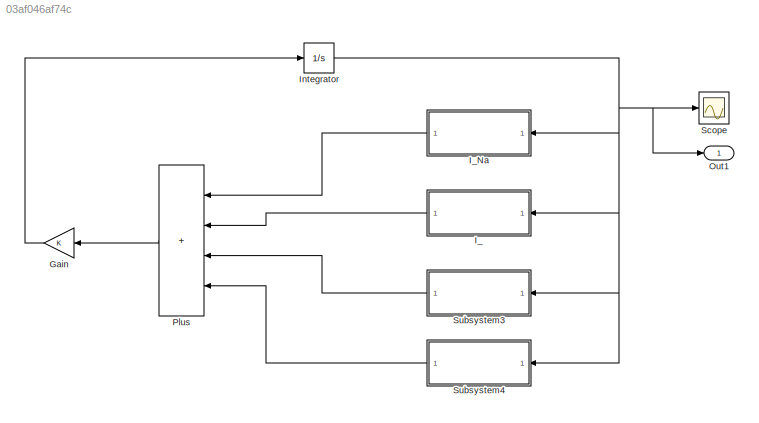
MODEL slx_03af046af74c
KIND model
CONFIG AbsTol = auto
CONFIG EnableMultiTasking = off
CONFIG FixedStep = 30e-6
CONFIG MaxStep = auto
CONFIG MinStep = auto
CONFIG RelTol = 1e-3
CONFIG SampleTimeConstraint = Unconstrained
CONFIG SolverName = FixedStepAuto
CONFIG StartTime = 0.0
CONFIG StopTime = 30e3
BLOCK [Gain] Gain
  NameLocation = top
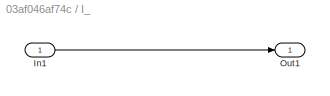
BLOCK [SubSystem] I_
  NameLocation = top
  Ports = [1, 1]
  RequestExecContextInheritance = off
BLOCK [Inport] I_/In1
BLOCK [Outport] I_/Out1
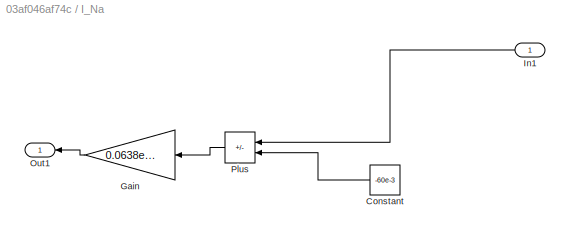
BLOCK [SubSystem] I_Na
  NameLocation = top
  Ports = [1, 1]
  RequestExecContextInheritance = off
BLOCK [Constant] I_Na/Constant
  NameLocation = top
  Value = -60e-3
BLOCK [Gain] I_Na/Gain
  Gain = 0.0638e-3
  NameLocation = top
BLOCK [Inport] I_Na/In1
  NameLocation = top
BLOCK [Outport] I_Na/Out1
  NameLocation = top
BLOCK [Sum] I_Na/Plus
  IconShape = rectangular
  Inputs = +-
  NameLocation = top
  Ports = [2, 1]
BLOCK [Integrator] Integrator
  InitialCondition = -60e3
  Ports = [1, 1]
BLOCK [Outport] Out1
BLOCK [Sum] Plus
  IconShape = rectangular
  Inputs = ++++
  NameLocation = top
  Ports = [4, 1]
BLOCK [Scope] Scope
  Floating = off
  NumInputPorts = 1
  Ports = [1]
  ScopeSpecificationString = Simulink.scopes.TimeScopeBlockCfg('CurrentConfiguration', extmgr.ConfigurationSet(extmgr.Configuration('Core','General UI',true),extmgr.Configuration('Core','Source UI',true),extmgr.Configuration('Sources','WiredSimulink',true),extmgr.Configuration('Visuals','Time Domain',true),extmgr.Configuration('Tools','Plot Navigation',true),extmgr.Configuration('Tools','Measurements',true)),'Version','2021a'...<+1ch>
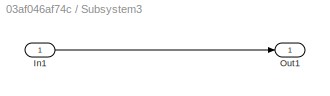
BLOCK [SubSystem] Subsystem3
  NameLocation = top
  Ports = [1, 1]
  RequestExecContextInheritance = off
BLOCK [Inport] Subsystem3/In1
BLOCK [Outport] Subsystem3/Out1
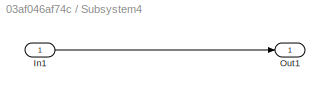
BLOCK [SubSystem] Subsystem4
  NameLocation = top
  Ports = [1, 1]
  RequestExecContextInheritance = off
BLOCK [Inport] Subsystem4/In1
BLOCK [Outport] Subsystem4/Out1
LINE Gain:1 -> Integrator:1
LINE I_/In1:1 -> I_/Out1:1
LINE I_:1 -> Plus:2
LINE I_Na/Constant:1 -> I_Na/Plus:2
LINE I_Na/Gain:1 -> I_Na/Out1:1
LINE I_Na/In1:1 -> I_Na/Plus:1
LINE I_Na/Plus:1 -> I_Na/Gain:1
LINE I_Na:1 -> Plus:1
NET Integrator:1 -> I_:1, I_Na:1, Out1:1, Scope:1, Subsystem3:1, Subsystem4:1
LINE Plus:1 -> Gain:1
LINE Subsystem3/In1:1 -> Subsystem3/Out1:1
LINE Subsystem3:1 -> Plus:3
LINE Subsystem4/In1:1 -> Subsystem4/Out1:1
LINE Subsystem4:1 -> Plus:4
note: NET lines group one-source signal fan-out (src -> all destinations, sorted); 1:1 wires keep LINE
